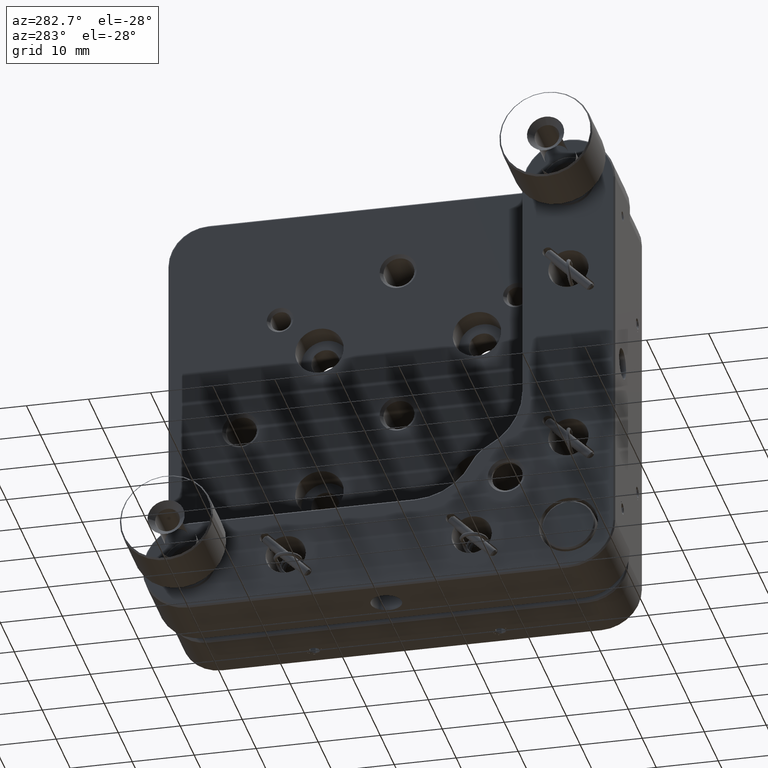
[diagram: clean part render]
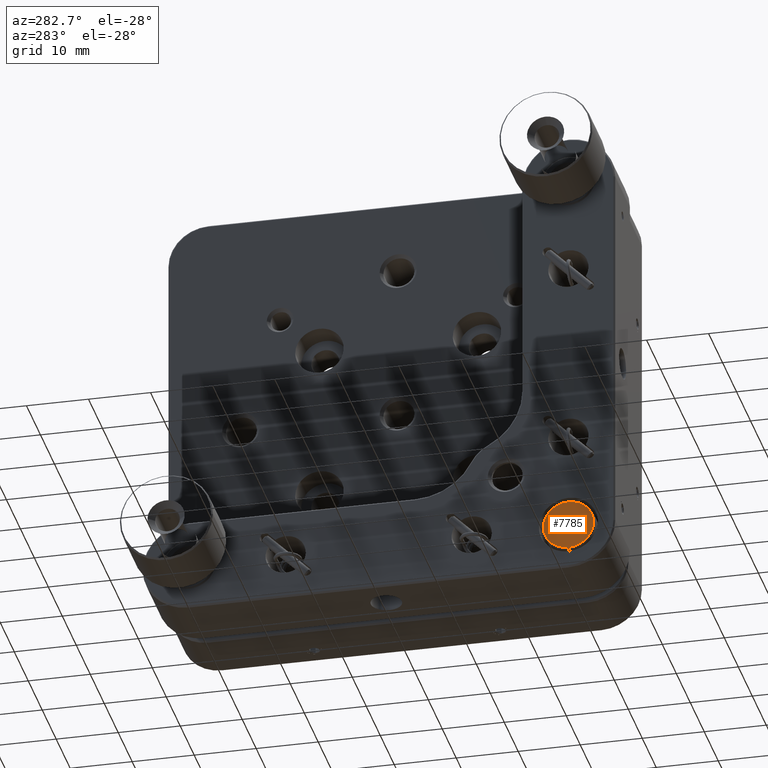
[diagram: same view with one face highlighted and labeled with its STEP entity id]
A machine part, auxiliary view. The second image highlights one B-rep face of the part: STEP entity #7785.
In plain terms, the highlighted planar face has unit normal (-1, -0, -0).
Its self-contained STEP definition (entity closure, byte-faithful):
#95 = CARTESIAN_POINT ( 'NONE',  ( -5.499999999999998224, -26.55000000000001492, -31.07729707730091917 ) ) ;
#266 = DIRECTION ( 'NONE',  ( 0.000000000000000000, 0.000000000000000000, -1.000000000000000000 ) ) ;
#1617 = CARTESIAN_POINT ( 'NONE',  ( -5.499999999999998224, -33.85918830920368094, -28.13162338159262887 ) ) ;
#1855 = CARTESIAN_POINT ( 'NONE',  ( -5.499999999999998224, -34.16827413080034148, -28.61067377721969862 ) ) ;
#2098 = CARTESIAN_POINT ( 'NONE',  ( -5.499999999999998224, -34.65000000000000568, -30.12270292269906946 ) ) ;
#2572 = CARTESIAN_POINT ( 'NONE',  ( -5.499999999999998224, -34.16827413080034859, -32.58932622278028646 ) ) ;
#6827 = CARTESIAN_POINT ( 'NONE',  ( -5.499999999999998224, -28.13162338159265019, -27.34081169079631479 ) ) ;
#7527 = CARTESIAN_POINT ( 'NONE',  ( -5.499999999999998224, -28.61067377721971638, -34.16827413080033438 ) ) ;
#7785 = ADVANCED_FACE ( 'NONE', ( #33601 ), #26423, .T. ) ;
#9551 = B_SPLINE_CURVE_WITH_KNOTS ( 'NONE', 3,
 ( #23206, #19836, #34227, #34459, #45691, #1617, #1855, #12885, #2098, #16720, #31363, #2572, #21010, #17187, #39441, #21475, #9755, #9993 ),
 .UNSPECIFIED., .F., .F.,
 ( 4, 2, 2, 2, 2, 2, 2, 2, 4 ),
 ( 0.000000000000000000, 1.590431280879831988, 3.180862561759663976, 4.771293842639495963, 6.361725123519327951, 7.952156404399159939, 9.542587685278991927, 11.13301896615882391, 12.72345024703865590 ),
 .UNSPECIFIED. ) ;
#9755 = CARTESIAN_POINT ( 'NONE',  ( -5.499999999999998224, -31.07729707730094404, -34.64999999999999147 ) ) ;
#9993 = CARTESIAN_POINT ( 'NONE',  ( -5.499999999999998224, -30.60000000000000853, -34.64999999999999147 ) ) ;
#10419 = CARTESIAN_POINT ( 'NONE',  ( -5.499999999999998224, -26.63698889219466537, -29.60775907532913109 ) ) ;
#11118 = CARTESIAN_POINT ( 'NONE',  ( -5.499999999999998224, -27.34081169079632900, -33.06837661840734910 ) ) ;
#12885 = CARTESIAN_POINT ( 'NONE',  ( -5.499999999999998224, -34.56301110780535168, -29.60775907532912754 ) ) ;
#15602 = DIRECTION ( 'NONE',  ( -1.000000000000000000, -0.000000000000000000, -0.000000000000000000 ) ) ;
#16627 = AXIS2_PLACEMENT_3D ( 'NONE', #26667, #15602, #266 ) ;
#16720 = CARTESIAN_POINT ( 'NONE',  ( -5.499999999999998224, -34.65000000000000568, -31.07729707730091917 ) ) ;
#17187 = CARTESIAN_POINT ( 'NONE',  ( -5.499999999999998224, -33.06837661840737042, -33.85918830920368094 ) ) ;
#18308 = CARTESIAN_POINT ( 'NONE',  ( -5.499999999999998224, -29.60775907532915241, -26.63698889219464760 ) ) ;
#18548 = CARTESIAN_POINT ( 'NONE',  ( -5.499999999999998224, -30.12270292269909433, -34.64999999999999147 ) ) ;
#19836 = CARTESIAN_POINT ( 'NONE',  ( -5.499999999999997335, -31.07729707730092983, -26.54999999999998650 ) ) ;
#21010 = CARTESIAN_POINT ( 'NONE',  ( -5.499999999999998224, -33.85918830920368805, -33.06837661840734910 ) ) ;
#21098 = CARTESIAN_POINT ( 'NONE',  ( -5.499999999999998224, -30.60000000000000853, -26.54999999999999361 ) ) ;
#21443 = CARTESIAN_POINT ( 'NONE',  ( -5.499999999999998224, -27.34081169079632545, -28.13162338159263953 ) ) ;
#21475 = CARTESIAN_POINT ( 'NONE',  ( -5.499999999999998224, -31.59224092467088241, -34.56301110780535168 ) ) ;
#21963 = VERTEX_POINT ( 'NONE', #21098 ) ;
#22153 = CARTESIAN_POINT ( 'NONE',  ( -5.499999999999998224, -26.55000000000001137, -30.12270292269907301 ) ) ;
#23206 = CARTESIAN_POINT ( 'NONE',  ( -5.499999999999998224, -30.60000000000000853, -26.54999999999999361 ) ) ;
#25297 = CARTESIAN_POINT ( 'NONE',  ( -5.499999999999998224, -29.60775907532914175, -34.56301110780535168 ) ) ;
#25751 = ORIENTED_EDGE ( 'NONE', *, *, #44101, .F. ) ;
#26016 = CARTESIAN_POINT ( 'NONE',  ( -5.499999999999997335, -30.12270292269908367, -26.54999999999999361 ) ) ;
#26423 = PLANE ( 'NONE',  #16627 ) ;
#26667 = CARTESIAN_POINT ( 'NONE',  ( -5.499999999999998224, -25.73880000000000479, -25.73879999999999058 ) ) ;
#28900 = CARTESIAN_POINT ( 'NONE',  ( -5.499999999999998224, -27.03172586919967557, -28.61067377721969507 ) ) ;
#29335 = EDGE_CURVE ( 'NONE', #21963, #43676, #40853, .T. ) ;
#29607 = CARTESIAN_POINT ( 'NONE',  ( -5.499999999999998224, -27.03172586919967557, -32.58932622278028646 ) ) ;
#31363 = CARTESIAN_POINT ( 'NONE',  ( -5.499999999999998224, -34.56301110780535879, -31.59224092467086109 ) ) ;
#32951 = CARTESIAN_POINT ( 'NONE',  ( -5.499999999999997335, -28.61067377721970928, -27.03172586919965070 ) ) ;
#33183 = CARTESIAN_POINT ( 'NONE',  ( -5.499999999999998224, -30.60000000000000853, -34.64999999999999147 ) ) ;
#33601 = FACE_OUTER_BOUND ( 'NONE', #36230, .T. ) ;
#34227 = CARTESIAN_POINT ( 'NONE',  ( -5.499999999999998224, -31.59224092467088951, -26.63698889219465471 ) ) ;
#34459 = CARTESIAN_POINT ( 'NONE',  ( -5.499999999999997335, -32.58932622278031488, -27.03172586919966136 ) ) ;
#36230 = EDGE_LOOP ( 'NONE', ( #45646, #25751 ) ) ;
#39441 = CARTESIAN_POINT ( 'NONE',  ( -5.499999999999998224, -32.58932622278030777, -34.16827413080033438 ) ) ;
#40344 = CARTESIAN_POINT ( 'NONE',  ( -5.499999999999998224, -28.13162338159265019, -33.85918830920368094 ) ) ;
#40434 = CARTESIAN_POINT ( 'NONE',  ( -5.499999999999998224, -30.60000000000000853, -34.64999999999999147 ) ) ;
#40853 = B_SPLINE_CURVE_WITH_KNOTS ( 'NONE', 3,
 ( #47311, #26016, #18308, #32951, #6827, #21443, #28900, #10419, #22153, #95, #43936, #29607, #11118, #40344, #7527, #25297, #18548, #33183 ),
 .UNSPECIFIED., .F., .F.,
 ( 4, 2, 2, 2, 2, 2, 2, 2, 4 ),
 ( 0.000000000000000000, 1.590431280879831988, 3.180862561759663976, 4.771293842639495963, 6.361725123519327951, 7.952156404399159939, 9.542587685278991927, 11.13301896615882391, 12.72345024703865590 ),
 .UNSPECIFIED. ) ;
#43676 = VERTEX_POINT ( 'NONE', #40434 ) ;
#43936 = CARTESIAN_POINT ( 'NONE',  ( -5.499999999999998224, -26.63698889219466182, -31.59224092467086109 ) ) ;
#44101 = EDGE_CURVE ( 'NONE', #21963, #43676, #9551, .T. ) ;
#45646 = ORIENTED_EDGE ( 'NONE', *, *, #29335, .T. ) ;
#45691 = CARTESIAN_POINT ( 'NONE',  ( -5.499999999999998224, -33.06837661840736331, -27.34081169079632545 ) ) ;
#47311 = CARTESIAN_POINT ( 'NONE',  ( -5.499999999999998224, -30.60000000000000853, -26.54999999999999361 ) ) ;